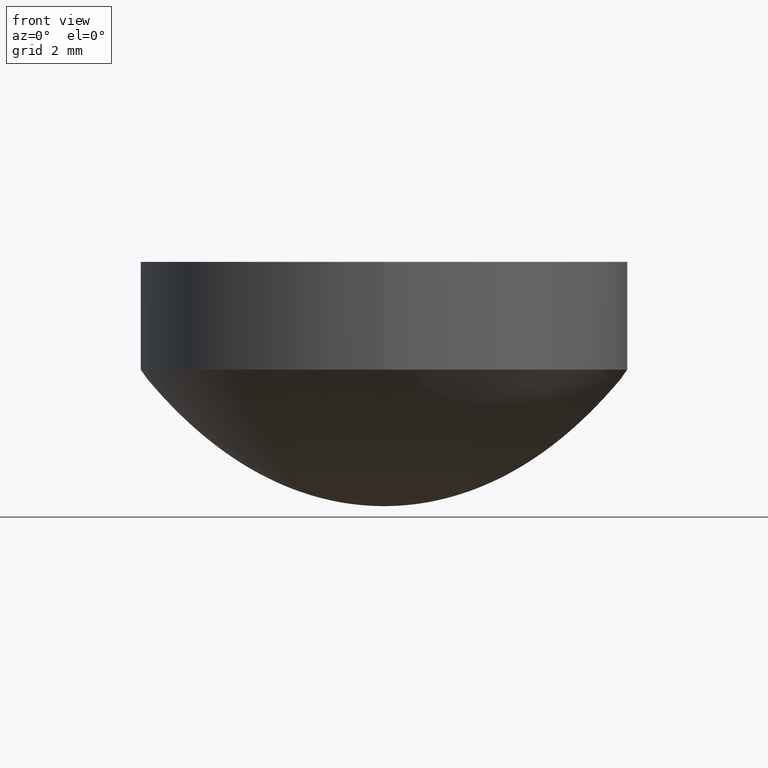
[diagram: clean part render]
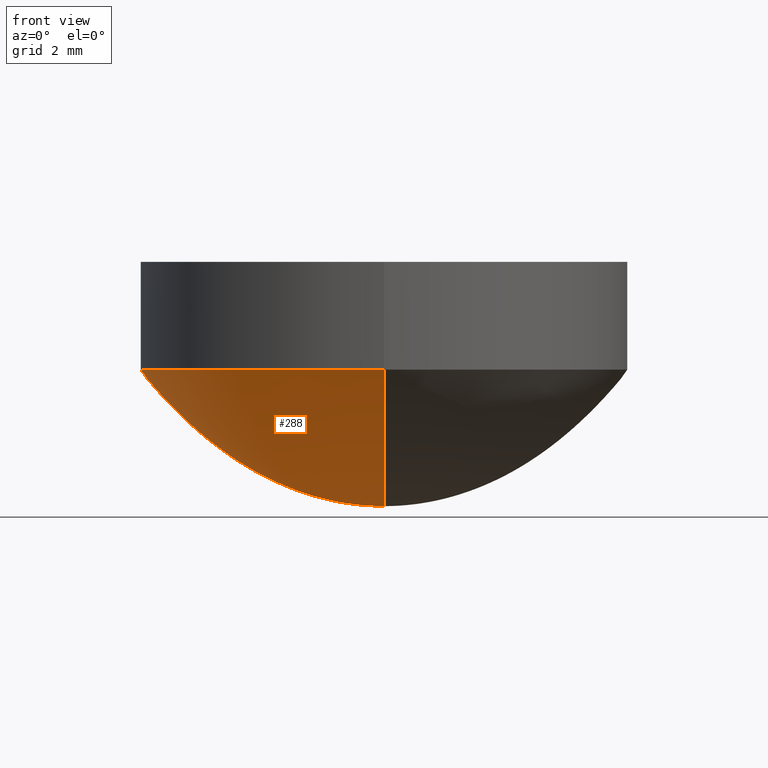
[diagram: same view with one face highlighted and labeled with its STEP entity id]
A machine part, front view. The second image highlights one B-rep face of the part: STEP entity #288.
In plain terms, the highlighted face is a freeform B-spline surface patch.
Its self-contained STEP definition (entity closure, byte-faithful):
#3 = CARTESIAN_POINT ( 'NONE',  ( -0.2083333333333338977, 0.1041666666666669905, 0.0008064525446619920856 ) ) ;
#4 = CARTESIAN_POINT ( 'NONE',  ( -8.020833333333337478, -4.010416666666668739, 1.720747009197980182 ) ) ;
#9 = CARTESIAN_POINT ( 'NONE',  ( 0.000000000000000000, 0.8854166666666670737, 0.07770321952578769509 ) ) ;
#10 = CARTESIAN_POINT ( 'NONE',  ( -3.890804934791066082E-16, -3.177083333333329929, 1.048866762044709855 ) ) ;
#13 = CARTESIAN_POINT ( 'NONE',  ( -6.378368745559127692E-18, -0.05208333333333330095, 0.000000000000000000 ) ) ;
#14 = CARTESIAN_POINT ( 'NONE',  ( 0.000000000000000000, 2.447916666666670071, 0.6104443979704369250 ) ) ;
#16 = CARTESIAN_POINT ( 'NONE',  ( 0.000000000000000000, 4.635416666666669627, 2.360148127938519913 ) ) ;
#19 = CARTESIAN_POINT ( 'NONE',  ( -1.211890061656234470E-16, -0.9895833333333330373, 0.09721789164745828216 ) ) ;
#20 = CARTESIAN_POINT ( 'NONE',  ( 0.000000000000000000, 2.552083333333330373, 0.6651740967401749138 ) ) ;
#26 = CARTESIAN_POINT ( 'NONE',  ( -2.806482248046021207E-16, -2.291666666666669627, 0.5330940863590959422 ) ) ;
#30 = CARTESIAN_POINT ( 'NONE',  ( -5.995666620825578906E-16, -4.895833333333330373, 2.664403828816089614 ) ) ;
#35 = CARTESIAN_POINT ( 'NONE',  ( -3.380535435146343200E-16, -2.760416666666669627, 0.7823694013034590000 ) ) ;
#36 = CARTESIAN_POINT ( 'NONE',  ( 0.000000000000000000, 4.947916666666669627, 2.728056462970759988 ) ) ;
#39 = CARTESIAN_POINT ( 'NONE',  ( -3.954588622246665194E-16, -3.229166666666669627, 1.085289345095020064 ) ) ;
#41 = CARTESIAN_POINT ( 'NONE',  ( -7.083333333333339255, -3.541666666666669183, 1.319014030935950155 ) ) ;
#42 = FACE_OUTER_BOUND ( 'NONE', #577, .T. ) ;
#44 = CARTESIAN_POINT ( 'NONE',  ( -4.464858121891388568E-16, -3.645833333333330373, 1.402859705147299962 ) ) ;
#45 = CARTESIAN_POINT ( 'NONE',  ( -3.316751747690744089E-16, -2.708333333333329929, 0.7520931647728069658 ) ) ;
#46 = CARTESIAN_POINT ( 'NONE',  ( 0.000000000000000000, 2.447916666666670071, 0.6104443979704369250 ) ) ;
#49 = CARTESIAN_POINT ( 'NONE',  ( -2.168645373490100596E-16, -1.770833333333329929, 0.3150526638210590091 ) ) ;
#50 = CARTESIAN_POINT ( 'NONE',  ( -9.895833333333339255, 4.947916666666669627, 2.728056462970759988 ) ) ;
#56 = CARTESIAN_POINT ( 'NONE',  ( -4.583333333333339255, 2.291666666666670071, 0.5330940863590960532 ) ) ;
#57 = CARTESIAN_POINT ( 'NONE',  ( 0.000000000000000000, 0.2604166666666670182, 0.006453795416485589957 ) ) ;
#60 = CARTESIAN_POINT ( 'NONE',  ( -3.854166666666659413, 1.927083333333329929, 0.3741652083103090276 ) ) ;
#62 = CARTESIAN_POINT ( 'NONE',  ( -5.294046058814083342E-16, -4.322916666666670515, 2.024935378494410187 ) ) ;
#67 = CARTESIAN_POINT ( 'NONE',  ( -2.232429060945700200E-16, -1.822916666666670071, 0.3341646850982459838 ) ) ;
#68 = CARTESIAN_POINT ( 'NONE',  ( -5.421613433725257899E-16, -4.427083333333329485, 2.133147733373760069 ) ) ;
#70 = CARTESIAN_POINT ( 'NONE',  ( -2.041077998578926038E-16, -1.666666666666670071, 0.2785780285211710283 ) ) ;
#72 = CARTESIAN_POINT ( 'NONE',  ( -4.464858121891388568E-16, -3.645833333333330373, 1.402859705147299962 ) ) ;
#76 = CARTESIAN_POINT ( 'NONE',  ( -1.666666666666665630, -0.8333333333333328152, 0.06877212295435830569 ) ) ;
#77 = CARTESIAN_POINT ( 'NONE',  ( 0.000000000000000000, 4.166666666666670515, 1.869068362535480032 ) ) ;
#81 = CARTESIAN_POINT ( 'NONE',  ( -1.275673749111830623E-16, -1.041666666666670071, 0.1078014655568300117 ) ) ;
#82 = CARTESIAN_POINT ( 'NONE',  ( 0.000000000000000000, 3.802083333333329929, 1.534370638992780034 ) ) ;
#86 = CARTESIAN_POINT ( 'NONE',  ( 0.000000000000000000, 0.4166666666666670182, 0.01694964846123230354 ) ) ;
#87 = CARTESIAN_POINT ( 'NONE',  ( 0.000000000000000000, 2.916666666666669627, 0.8771974430765130393 ) ) ;
#90 = CARTESIAN_POINT ( 'NONE',  ( -0.1041666666666665741, 0.05208333333333330095, 0.000000000000000000 ) ) ;
#91 = CARTESIAN_POINT ( 'NONE',  ( -6.145833333333338366, 3.072916666666670071, 0.9781205686555800582 ) ) ;
#95 = CARTESIAN_POINT ( 'NONE',  ( -0.8333333333333338144, -0.4166666666666669072, 0.01694964846123230354 ) ) ;
#96 = CARTESIAN_POINT ( 'NONE',  ( -5.208333333333339255, 2.604166666666670071, 0.6934955115667149617 ) ) ;
#101 = CARTESIAN_POINT ( 'NONE',  ( -3.508102810057518251E-16, -2.864583333333329929, 0.8449215409896569939 ) ) ;
#102 = CARTESIAN_POINT ( 'NONE',  ( -5.833333333333339255, -2.916666666666669183, 0.8771974430765129283 ) ) ;
#114 = CARTESIAN_POINT ( 'NONE',  ( 0.000000000000000000, 3.333333333333329929, 1.160287938878900027 ) ) ;
#117 = CARTESIAN_POINT ( 'NONE',  ( -1.211890061656234470E-16, -0.9895833333333330373, 0.09721789164745828216 ) ) ;
#121 = CARTESIAN_POINT ( 'NONE',  ( -1.785943248756552765E-16, -1.458333333333329929, 0.2125775925363989904 ) ) ;
#122 = CARTESIAN_POINT ( 'NONE',  ( -5.104166666666659857, -2.552083333333329929, 0.6651740967401749138 ) ) ;
#123 = EDGE_CURVE ( 'NONE', #237, #259, #645, .T. ) ;
#124 = CARTESIAN_POINT ( 'NONE',  ( 0.000000000000000000, 1.927083333333329929, 0.3741652083103090276 ) ) ;
#128 = CARTESIAN_POINT ( 'NONE',  ( -1.785943248756552765E-16, -1.458333333333329929, 0.2125775925363989904 ) ) ;
#129 = CARTESIAN_POINT ( 'NONE',  ( 0.000000000000000000, 0.05208333333333330095, 0.000000000000000000 ) ) ;
#132 = CARTESIAN_POINT ( 'NONE',  ( -3.229166666666658081, -1.614583333333329040, 0.2612154173146479241 ) ) ;
#133 = CARTESIAN_POINT ( 'NONE',  ( 0.000000000000000000, 0.7291666666666670737, 0.05255022102027309683 ) ) ;
#139 = CARTESIAN_POINT ( 'NONE',  ( 0.000000000000000000, 1.197916666666670071, 0.1428861566637960046 ) ) ;
#140 = CARTESIAN_POINT ( 'NONE',  ( -9.999999999999998224, 5.000000000000000000, 2.793147640223440753 ) ) ;
#143 = CARTESIAN_POINT ( 'NONE',  ( -3.020833333333339699, -1.510416666666669849, 0.2282151980032680050 ) ) ;
#144 = CARTESIAN_POINT ( 'NONE',  ( -8.229166666666658969, -4.114583333333329485, 1.818804946892209840 ) ) ;
#147 = CARTESIAN_POINT ( 'NONE',  ( -2.806482248046021207E-16, -2.291666666666669627, 0.5330940863590959422 ) ) ;
#148 = CARTESIAN_POINT ( 'NONE',  ( -7.604166666666659857, 3.802083333333329929, 1.534370638992780034 ) ) ;
#153 = CARTESIAN_POINT ( 'NONE',  ( -1.458333333333333925, -0.7291666666666667407, 0.05255022102027309683 ) ) ;
#156 = CARTESIAN_POINT ( 'NONE',  ( 0.000000000000000000, 4.010416666666669627, 1.720747009197980182 ) ) ;
#160 = CARTESIAN_POINT ( 'NONE',  ( 0.000000000000000000, 0.000000000000000000, 0.000000000000000000 ) ) ;
#162 = CARTESIAN_POINT ( 'NONE',  ( 0.000000000000000000, 4.322916666666670515, 2.024935378494410187 ) ) ;
#166 = CARTESIAN_POINT ( 'NONE',  ( -1.041666666666665853, 0.5208333333333330373, 0.02664777265347659588 ) ) ;
#167 = CARTESIAN_POINT ( 'NONE',  ( 0.000000000000000000, 3.645833333333330373, 1.402859705147299962 ) ) ;
#171 = CARTESIAN_POINT ( 'NONE',  ( 0.000000000000000000, 0.9895833333333330373, 0.09721789164745828216 ) ) ;
#172 = CARTESIAN_POINT ( 'NONE',  ( -6.458333333333337478, -3.229166666666668739, 1.085289345095020064 ) ) ;
#175 = CARTESIAN_POINT ( 'NONE',  ( -0.4166666666666659080, 0.2083333333333330373, 0.004033350387674640436 ) ) ;
#177 = CARTESIAN_POINT ( 'NONE',  ( -4.895833333333338366, -2.447916666666669183, 0.6104443979704369250 ) ) ;
#178 = CARTESIAN_POINT ( 'NONE',  ( 0.000000000000000000, 4.322916666666670515, 2.024935378494410187 ) ) ;
#181 = CARTESIAN_POINT ( 'NONE',  ( -4.273507059524613913E-16, -3.489583333333330373, 1.278226996112129976 ) ) ;
#182 = CARTESIAN_POINT ( 'NONE',  ( 0.000000000000000000, 3.385416666666669627, 1.198863952823499890 ) ) ;
#186 = CARTESIAN_POINT ( 'NONE',  ( -3.571886497513117363E-16, -2.916666666666669627, 0.8771974430765130393 ) ) ;
#189 = CARTESIAN_POINT ( 'NONE',  ( 0.000000000000000000, 3.020833333333330373, 0.9437969569100039813 ) ) ;
#194 = CARTESIAN_POINT ( 'NONE',  ( 0.000000000000000000, 3.645833333333330373, 1.402859705147299962 ) ) ;
#197 = CARTESIAN_POINT ( 'NONE',  ( -2.742698560590422096E-16, -2.239583333333329929, 0.5085603405870479099 ) ) ;
#202 = CARTESIAN_POINT ( 'NONE',  ( -5.868099245914404349E-16, -4.791666666666669627, 2.539913410714560005 ) ) ;
#204 = CARTESIAN_POINT ( 'NONE',  ( -5.520833333333339255, -2.760416666666668739, 0.7823694013034590000 ) ) ;
#206 = CARTESIAN_POINT ( 'NONE',  ( 0.000000000000000000, 1.458333333333329929, 0.2125775925363989904 ) ) ;
#210 = CARTESIAN_POINT ( 'NONE',  ( -1.275673749111830315E-17, -0.1041666666666670044, 0.0008064525446619920856 ) ) ;
#211 = CARTESIAN_POINT ( 'NONE',  ( -6.041666666666658081, 3.020833333333330373, 0.9437969569100038703 ) ) ;
#216 = CARTESIAN_POINT ( 'NONE',  ( -1.658375873845378207E-16, -1.354166666666670071, 0.1830055619264369937 ) ) ;
#217 = CARTESIAN_POINT ( 'NONE',  ( 0.000000000000000000, 1.666666666666670071, 0.2785780285211710283 ) ) ;
#221 = CARTESIAN_POINT ( 'NONE',  ( -6.378368745559127692E-18, -0.05208333333333330095, 0.000000000000000000 ) ) ;
#222 = CARTESIAN_POINT ( 'NONE',  ( 0.000000000000000000, 1.770833333333329929, 0.3150526638210590091 ) ) ;
#224 = CARTESIAN_POINT ( 'NONE',  ( -5.995666620825578906E-16, -4.895833333333330373, 2.664403828816089614 ) ) ;
#228 = CARTESIAN_POINT ( 'NONE',  ( -2.291666666666659413, -1.145833333333329707, 0.1306355990214130014 ) ) ;
#229 = CARTESIAN_POINT ( 'NONE',  ( 0.000000000000000000, 4.270833333333330373, 1.972133565051859883 ) ) ;
#233 = CARTESIAN_POINT ( 'NONE',  ( 0.000000000000000000, 2.083333333333330373, 0.4386370034883719793 ) ) ;
#234 = CARTESIAN_POINT ( 'NONE',  ( -9.583333333333337478, -4.791666666666668739, 2.539913410714560005 ) ) ;
#237 = VERTEX_POINT ( 'NONE', #381 ) ;
#238 = CARTESIAN_POINT ( 'NONE',  ( -1.041666666666665853, -0.5208333333333329263, 0.02664777265347659588 ) ) ;
#239 = CARTESIAN_POINT ( 'NONE',  ( 0.000000000000000000, 4.479166666666669627, 2.188558308208239822 ) ) ;
#243 = CARTESIAN_POINT ( 'NONE',  ( 0.000000000000000000, 0.1041666666666670044, 0.0008064525446619920856 ) ) ;
#245 = CARTESIAN_POINT ( 'NONE',  ( -9.270833333333337478, 4.635416666666669627, 2.360148127938519913 ) ) ;
#250 = CARTESIAN_POINT ( 'NONE',  ( -5.230262371358484230E-16, -4.270833333333330373, 1.972133565051859883 ) ) ;
#255 = CARTESIAN_POINT ( 'NONE',  ( -1.770833333333333925, 0.8854166666666670737, 0.07770321952578769509 ) ) ;
#256 = CARTESIAN_POINT ( 'NONE',  ( -6.666666666666658081, -3.333333333333329040, 1.160287938878900027 ) ) ;
#257 = CARTESIAN_POINT ( 'NONE',  ( 0.000000000000000000, 4.739583333333330373, 2.479075565606579712 ) ) ;
#259 = VERTEX_POINT ( 'NONE', #622 ) ;
#260 = CARTESIAN_POINT ( 'NONE',  ( -1.770833333333333925, -0.8854166666666669627, 0.07770321952578769509 ) ) ;
#262 = CARTESIAN_POINT ( 'NONE',  ( -3.380535435146343200E-16, -2.760416666666669627, 0.7823694013034590000 ) ) ;
#264 = CARTESIAN_POINT ( 'NONE',  ( 0.000000000000000000, 3.958333333333330373, 1.672952466389409976 ) ) ;
#267 = CARTESIAN_POINT ( 'NONE',  ( -3.699453872424291920E-16, -3.020833333333330373, 0.9437969569100039813 ) ) ;
#269 = CARTESIAN_POINT ( 'NONE',  ( -5.729166666666658969, 2.864583333333329929, 0.8449215409896571050 ) ) ;
#273 = CARTESIAN_POINT ( 'NONE',  ( -4.719992871713760363E-16, -3.854166666666669627, 1.579764289203899885 ) ) ;
#274 = CARTESIAN_POINT ( 'NONE',  ( 0.000000000000000000, 3.385416666666669627, 1.198863952823499890 ) ) ;
#285 = CARTESIAN_POINT ( 'NONE',  ( -1.467024811478604292E-16, -1.197916666666670071, 0.1428861566637960046 ) ) ;
#286 = CARTESIAN_POINT ( 'NONE',  ( 0.000000000000000000, 1.510416666666670071, 0.2282151980032680050 ) ) ;
#288 = ADVANCED_FACE ( 'NONE', ( #42 ), #1034, .T. ) ;
#290 = CARTESIAN_POINT ( 'NONE',  ( -2.934049622957196751E-16, -2.395833333333329929, 0.5840361164201749444 ) ) ;
#291 = CARTESIAN_POINT ( 'NONE',  ( -6.979166666666658969, 3.489583333333330373, 1.278226996112129976 ) ) ;
#296 = CARTESIAN_POINT ( 'NONE',  ( -4.273507059524613913E-16, -3.489583333333330373, 1.278226996112129976 ) ) ;
#297 = CARTESIAN_POINT ( 'NONE',  ( 0.000000000000000000, 1.302083333333329929, 0.1690711392038899974 ) ) ;
#301 = CARTESIAN_POINT ( 'NONE',  ( -6.378368745559127230E-17, -0.5208333333333330373, 0.02664777265347659588 ) ) ;
#303 = CARTESIAN_POINT ( 'NONE',  ( -2.708333333333339699, -1.354166666666669405, 0.1830055619264369937 ) ) ;
#305 = CARTESIAN_POINT ( 'NONE',  ( 0.000000000000000000, 0.1041666666666670044, 0.0008064525446619920856 ) ) ;
#309 = CARTESIAN_POINT ( 'NONE',  ( -2.359996435856874265E-16, -1.927083333333329929, 0.3741652083103090276 ) ) ;
#310 = CARTESIAN_POINT ( 'NONE',  ( 0.000000000000000000, 0.5208333333333330373, 0.02664777265347659588 ) ) ;
#313 = CARTESIAN_POINT ( 'NONE',  ( -8.291879369226865153E-17, -0.6770833333333329263, 0.04525941702231930236 ) ) ;
#314 = CARTESIAN_POINT ( 'NONE',  ( -3.541666666666659857, -1.770833333333329485, 0.3150526638210590091 ) ) ;
#316 = CARTESIAN_POINT ( 'NONE',  ( 0.000000000000000000, 4.739583333333330373, 2.479075565606579712 ) ) ;
#319 = CARTESIAN_POINT ( 'NONE',  ( 0.000000000000000000, 1.458333333333329929, 0.2125775925363989904 ) ) ;
#320 = CARTESIAN_POINT ( 'NONE',  ( -4.528641809346987680E-16, -3.697916666666669627, 1.445918352819189900 ) ) ;
#325 = CARTESIAN_POINT ( 'NONE',  ( -3.333333333333339255, -1.666666666666669627, 0.2785780285211710283 ) ) ;
#326 = CARTESIAN_POINT ( 'NONE',  ( -7.395833333333337478, 3.697916666666670071, 1.445918352819189900 ) ) ;
#329 = ORIENTED_EDGE ( 'NONE', *, *, #1031, .F. ) ;
#330 = CARTESIAN_POINT ( 'NONE',  ( 0.000000000000000000, 0.2604166666666670182, 0.006453795416485589957 ) ) ;
#331 = CARTESIAN_POINT ( 'NONE',  ( 0.000000000000000000, 4.583333333333329485, 2.302058484811909889 ) ) ;
#335 = CARTESIAN_POINT ( 'NONE',  ( -1.084322686745052763E-16, -0.8854166666666670737, 0.07770321952578769509 ) ) ;
#337 = CARTESIAN_POINT ( 'NONE',  ( -4.656209184258161251E-16, -3.802083333333329929, 1.534370638992780034 ) ) ;
#342 = CARTESIAN_POINT ( 'NONE',  ( -1.145833333333333703, -0.5729166666666668517, 0.03230819229490249772 ) ) ;
#343 = CARTESIAN_POINT ( 'NONE',  ( -3.763237559879891525E-16, -3.072916666666670071, 0.9781205686555799472 ) ) ;
#347 = CARTESIAN_POINT ( 'NONE',  ( -0.5208333333333339255, -0.2604166666666669627, 0.006453795416485589957 ) ) ;
#348 = CARTESIAN_POINT ( 'NONE',  ( -6.354166666666658081, 3.177083333333330373, 1.048866762044710077 ) ) ;
#349 = CARTESIAN_POINT ( 'NONE',  ( 0.000000000000000000, 4.583333333333329485, 2.302058484811909889 ) ) ;
#353 = CARTESIAN_POINT ( 'NONE',  ( -1.979166666666665408, -0.9895833333333327042, 0.09721789164745829603 ) ) ;
#357 = CARTESIAN_POINT ( 'NONE',  ( 0.000000000000000000, 2.395833333333329929, 0.5840361164201749444 ) ) ;
#360 = CARTESIAN_POINT ( 'NONE',  ( -4.082155997157840244E-16, -3.333333333333329929, 1.160287938878900027 ) ) ;
#362 = CARTESIAN_POINT ( 'NONE',  ( 0.000000000000000000, 4.270833333333330373, 1.972133565051859883 ) ) ;
#365 = CARTESIAN_POINT ( 'NONE',  ( -2.997833310412795863E-16, -2.447916666666670071, 0.6104443979704369250 ) ) ;
#369 = CARTESIAN_POINT ( 'NONE',  ( -4.528641809346987680E-16, -3.697916666666669627, 1.445918352819189900 ) ) ;
#371 = CARTESIAN_POINT ( 'NONE',  ( 0.000000000000000000, 2.083333333333330373, 0.4386370034883719793 ) ) ;
#374 = CARTESIAN_POINT ( 'NONE',  ( -2.359996435856874265E-16, -1.927083333333329929, 0.3741652083103090276 ) ) ;
#375 = CARTESIAN_POINT ( 'NONE',  ( 0.000000000000000000, 2.760416666666669627, 0.7823694013034590000 ) ) ;
#376 = CARTESIAN_POINT ( 'NONE',  ( 0.000000000000000000, 1.770833333333329929, 0.3150526638210590091 ) ) ;
#379 = CARTESIAN_POINT ( 'NONE',  ( -5.038911308991709575E-16, -4.114583333333330373, 1.818804946892209840 ) ) ;
#380 = CARTESIAN_POINT ( 'NONE',  ( -4.791666666666658969, -2.395833333333329485, 0.5840361164201749444 ) ) ;
#381 = CARTESIAN_POINT ( 'NONE',  ( 0.000000000000000000, 5.000000000000000000, 2.793147640223440309 ) ) ;
#385 = CARTESIAN_POINT ( 'NONE',  ( 0.000000000000000000, 1.666666666666670071, 0.2785780285211710283 ) ) ;
#386 = CARTESIAN_POINT ( 'NONE',  ( 0.000000000000000000, 2.239583333333329929, 0.5085603405870479099 ) ) ;
#390 = CARTESIAN_POINT ( 'NONE',  ( -2.423780123312473869E-16, -1.979166666666669849, 0.3950537073087639905 ) ) ;
#391 = CARTESIAN_POINT ( 'NONE',  ( -9.895833333333339255, -4.947916666666669627, 2.728056462970759988 ) ) ;
#394 = CARTESIAN_POINT ( 'NONE',  ( -4.166666666666659857, -2.083333333333329929, 0.4386370034883719793 ) ) ;
#395 = CARTESIAN_POINT ( 'NONE',  ( -5.804315558458805237E-16, -4.739583333333330373, 2.479075565606579712 ) ) ;
#400 = CARTESIAN_POINT ( 'NONE',  ( 0.000000000000000000, 1.041666666666670071, 0.1078014655568300117 ) ) ;
#401 = CARTESIAN_POINT ( 'NONE',  ( -7.916666666666658081, 3.958333333333330373, 1.672952466389410198 ) ) ;
#405 = CARTESIAN_POINT ( 'NONE',  ( 0.000000000000000000, 1.510416666666670071, 0.2282151980032680050 ) ) ;
#407 = CARTESIAN_POINT ( 'NONE',  ( -8.645833333333337478, -4.322916666666668739, 2.024935378494410187 ) ) ;
#411 = CARTESIAN_POINT ( 'NONE',  ( 0.000000000000000000, 0.6770833333333329263, 0.04525941702231930236 ) ) ;
#412 = CARTESIAN_POINT ( 'NONE',  ( 0.000000000000000000, 3.958333333333330373, 1.672952466389409976 ) ) ;
#416 = CARTESIAN_POINT ( 'NONE',  ( -1.666666666666665630, 0.8333333333333329263, 0.06877212295435830569 ) ) ;
#418 = CARTESIAN_POINT ( 'NONE',  ( 0.000000000000000000, 4.635416666666669627, 2.360148127938519913 ) ) ;
#423 = CARTESIAN_POINT ( 'NONE',  ( 0.000000000000000000, 0.8333333333333329263, 0.06877212295435830569 ) ) ;
#424 = CARTESIAN_POINT ( 'NONE',  ( -6.458333333333337478, 3.229166666666669627, 1.085289345095020064 ) ) ;
#427 = ORIENTED_EDGE ( 'NONE', *, *, #809, .F. ) ;
#428 = CARTESIAN_POINT ( 'NONE',  ( -0.1041666666666665741, -0.05208333333333328707, 0.000000000000000000 ) ) ;
#429 = CARTESIAN_POINT ( 'NONE',  ( -3.699453872424291920E-16, -3.020833333333330373, 0.9437969569100039813 ) ) ;
#430 = CARTESIAN_POINT ( 'NONE',  ( 0.000000000000000000, 5.000000000000000000, 2.793147640223440309 ) ) ;
#434 = CARTESIAN_POINT ( 'NONE',  ( -6.145833333333338366, -3.072916666666669183, 0.9781205686555800582 ) ) ;
#442 = CARTESIAN_POINT ( 'NONE',  ( -5.520833333333339255, 2.760416666666669627, 0.7823694013034590000 ) ) ;
#451 = CARTESIAN_POINT ( 'NONE',  ( -5.804315558458805237E-16, -4.739583333333330373, 2.479075565606579712 ) ) ;
#457 = CARTESIAN_POINT ( 'NONE',  ( -6.123233995736766282E-16, -5.000000000000000000, 2.793147640223440309 ) ) ;
#461 = CARTESIAN_POINT ( 'NONE',  ( -5.485397121180857011E-16, -4.479166666666669627, 2.188558308208239822 ) ) ;
#462 = CARTESIAN_POINT ( 'NONE',  ( -3.125400685323970420E-16, -2.552083333333330373, 0.6651740967401749138 ) ) ;
#463 = CARTESIAN_POINT ( 'NONE',  ( 0.000000000000000000, 0.4166666666666670182, 0.01694964846123230354 ) ) ;
#467 = CARTESIAN_POINT ( 'NONE',  ( -2.708333333333339699, 1.354166666666670071, 0.1830055619264369937 ) ) ;
#468 = CARTESIAN_POINT ( 'NONE',  ( -9.999999999999998224, -4.999999999999999112, 2.793147640223440753 ) ) ;
#471 = CARTESIAN_POINT ( 'NONE',  ( -2.551347498223648612E-17, -0.2083333333333330095, 0.004033350387674640436 ) ) ;
#472 = CARTESIAN_POINT ( 'NONE',  ( -1.594592186389778603E-16, -1.302083333333329929, 0.1690711392038899974 ) ) ;
#477 = CARTESIAN_POINT ( 'NONE',  ( 0.000000000000000000, 1.145833333333329929, 0.1306355990214130014 ) ) ;
#478 = CARTESIAN_POINT ( 'NONE',  ( 0.000000000000000000, 0.2083333333333330095, 0.004033350387674640436 ) ) ;
#481 = CARTESIAN_POINT ( 'NONE',  ( -1.467024811478604292E-16, -1.197916666666670071, 0.1428861566637960046 ) ) ;
#483 = CARTESIAN_POINT ( 'NONE',  ( -8.020833333333337478, 4.010416666666669627, 1.720747009197980182 ) ) ;
#485 = CARTESIAN_POINT ( 'NONE',  ( -4.166666666666659857, 2.083333333333330373, 0.4386370034883719793 ) ) ;
#486 = CARTESIAN_POINT ( 'NONE',  ( 0.000000000000000000, 3.697916666666669627, 1.445918352819189900 ) ) ;
#490 = CARTESIAN_POINT ( 'NONE',  ( -1.145833333333333703, 0.5729166666666670737, 0.03230819229490249772 ) ) ;
#491 = CARTESIAN_POINT ( 'NONE',  ( -9.583333333333337478, 4.791666666666669627, 2.539913410714560005 ) ) ;
#496 = CARTESIAN_POINT ( 'NONE',  ( -6.378368745559127230E-17, -0.5208333333333330373, 0.02664777265347659588 ) ) ;
#497 = CARTESIAN_POINT ( 'NONE',  ( -5.038911308991709575E-16, -4.114583333333330373, 1.818804946892209840 ) ) ;
#502 = CARTESIAN_POINT ( 'NONE',  ( -7.291666666666659857, -3.645833333333329929, 1.402859705147299962 ) ) ;
#506 = CARTESIAN_POINT ( 'NONE',  ( -0.7291666666666659635, -0.3645833333333328707, 0.01291194472337759899 ) ) ;
#509 = CARTESIAN_POINT ( 'NONE',  ( 0.000000000000000000, 3.489583333333330373, 1.278226996112129976 ) ) ;
#512 = CARTESIAN_POINT ( 'NONE',  ( -2.083333333333339699, -1.041666666666669849, 0.1078014655568299979 ) ) ;
#514 = CARTESIAN_POINT ( 'NONE',  ( 0.000000000000000000, 3.072916666666670071, 0.9781205686555799472 ) ) ;
#518 = CARTESIAN_POINT ( 'NONE',  ( -5.612964496092031568E-16, -4.583333333333329485, 2.302058484811909889 ) ) ;
#519 = CARTESIAN_POINT ( 'NONE',  ( -6.354166666666658081, -3.177083333333329040, 1.048866762044710077 ) ) ;
#524 = CARTESIAN_POINT ( 'NONE',  ( -1.849726936212152369E-16, -1.510416666666670071, 0.2282151980032680050 ) ) ;
#530 = CARTESIAN_POINT ( 'NONE',  ( -3.763237559879891525E-16, -3.072916666666670071, 0.9781205686555799472 ) ) ;
#531 = CARTESIAN_POINT ( 'NONE',  ( 0.000000000000000000, 3.072916666666670071, 0.9781205686555799472 ) ) ;
#534 = CARTESIAN_POINT ( 'NONE',  ( -5.421613433725257899E-16, -4.427083333333329485, 2.133147733373760069 ) ) ;
#538 = CARTESIAN_POINT ( 'NONE',  ( -2.168645373490100596E-16, -1.770833333333329929, 0.3150526638210590091 ) ) ;
#539 = CARTESIAN_POINT ( 'NONE',  ( -5.833333333333339255, 2.916666666666669627, 0.8771974430765129283 ) ) ;
#541 = CARTESIAN_POINT ( 'NONE',  ( 0.000000000000000000, 4.947916666666669627, 2.728056462970759988 ) ) ;
#545 = CARTESIAN_POINT ( 'NONE',  ( -2.916666666666658969, -1.458333333333329485, 0.2125775925363989904 ) ) ;
#546 = CARTESIAN_POINT ( 'NONE',  ( 0.000000000000000000, 2.395833333333329929, 0.5840361164201749444 ) ) ;
#549 = CARTESIAN_POINT ( 'NONE',  ( -3.189184372779570394E-17, -0.2604166666666670182, 0.006453795416485589957 ) ) ;
#551 = CARTESIAN_POINT ( 'NONE',  ( -2.916666666666658969, 1.458333333333329929, 0.2125775925363989904 ) ) ;
#552 = CARTESIAN_POINT ( 'NONE',  ( 0.000000000000000000, 1.145833333333329929, 0.1306355990214130014 ) ) ;
#554 = CARTESIAN_POINT ( 'NONE',  ( 0.000000000000000000, 1.302083333333329929, 0.1690711392038899974 ) ) ;
#555 = CARTESIAN_POINT ( 'NONE',  ( 0.000000000000000000, 0.000000000000000000, 0.000000000000000000 ) ) ;
#561 = CARTESIAN_POINT ( 'NONE',  ( -2.395833333333339699, 1.197916666666669849, 0.1428861566637960323 ) ) ;
#562 = CARTESIAN_POINT ( 'NONE',  ( -9.479166666666658969, 4.739583333333330373, 2.479075565606579268 ) ) ;
#565 = CARTESIAN_POINT ( 'NONE',  ( 0.000000000000000000, 1.927083333333329929, 0.3741652083103090276 ) ) ;
#566 = CARTESIAN_POINT ( 'NONE',  ( -7.916666666666658081, -3.958333333333329040, 1.672952466389410198 ) ) ;
#570 = CARTESIAN_POINT ( 'NONE',  ( -3.189184372779570394E-17, -0.2604166666666670182, 0.006453795416485589957 ) ) ;
#571 = CARTESIAN_POINT ( 'NONE',  ( -8.645833333333337478, 4.322916666666670515, 2.024935378494410187 ) ) ;
#577 = EDGE_LOOP ( 'NONE', ( #427, #329, #673 ) ) ;
#578 = CARTESIAN_POINT ( 'NONE',  ( -1.354166666666665630, 0.6770833333333330373, 0.04525941702231930236 ) ) ;
#579 = CARTESIAN_POINT ( 'NONE',  ( -9.166666666666658969, 4.583333333333329485, 2.302058484811909889 ) ) ;
#583 = CARTESIAN_POINT ( 'NONE',  ( 0.000000000000000000, 0.7291666666666670737, 0.05255022102027309683 ) ) ;
#586 = CARTESIAN_POINT ( 'NONE',  ( -8.958333333333337478, 4.479166666666669627, 2.188558308208239822 ) ) ;
#590 = CARTESIAN_POINT ( 'NONE',  ( -0.2083333333333338977, -0.1041666666666669488, 0.0008064525446619920856 ) ) ;
#591 = CARTESIAN_POINT ( 'NONE',  ( 0.000000000000000000, 3.229166666666669627, 1.085289345095020064 ) ) ;
#594 = CARTESIAN_POINT ( 'NONE',  ( 0.000000000000000000, 0.3645833333333330373, 0.01291194472337760073 ) ) ;
#596 = CARTESIAN_POINT ( 'NONE',  ( -5.729166666666658969, -2.864583333333329485, 0.8449215409896571050 ) ) ;
#600 = CARTESIAN_POINT ( 'NONE',  ( -2.232429060945700200E-16, -1.822916666666670071, 0.3341646850982459838 ) ) ;
#601 = CARTESIAN_POINT ( 'NONE',  ( -3.508102810057518251E-16, -2.864583333333329929, 0.8449215409896569939 ) ) ;
#602 = CARTESIAN_POINT ( 'NONE',  ( 0.000000000000000000, 4.010416666666669627, 1.720747009197980182 ) ) ;
#605 = CARTESIAN_POINT ( 'NONE',  ( -3.316751747690744089E-16, -2.708333333333329929, 0.7520931647728069658 ) ) ;
#607 = CARTESIAN_POINT ( 'NONE',  ( 0.000000000000000000, 3.229166666666669627, 1.085289345095020064 ) ) ;
#610 = CARTESIAN_POINT ( 'NONE',  ( -5.294046058814083342E-16, -4.322916666666670515, 2.024935378494410187 ) ) ;
#613 = CARTESIAN_POINT ( 'NONE',  ( 0.000000000000000000, 4.479166666666669627, 2.188558308208239822 ) ) ;
#616 = CARTESIAN_POINT ( 'NONE',  ( -4.656209184258161251E-16, -3.802083333333329929, 1.534370638992780034 ) ) ;
#617 = CARTESIAN_POINT ( 'NONE',  ( 0.000000000000000000, 0.8854166666666670737, 0.07770321952578769509 ) ) ;
#620 = CARTESIAN_POINT ( 'NONE',  ( -2.615131185679248031E-16, -2.135416666666670071, 0.4613317976900179751 ) ) ;
#621 = CARTESIAN_POINT ( 'NONE',  ( -6.770833333333337478, -3.385416666666668739, 1.198863952823499890 ) ) ;
#622 = CARTESIAN_POINT ( 'NONE',  ( 0.000000000000000000, 0.000000000000000000, 0.000000000000000000 ) ) ;
#628 = CARTESIAN_POINT ( 'NONE',  ( -4.082155997157840244E-16, -3.333333333333329929, 1.160287938878900027 ) ) ;
#630 = CARTESIAN_POINT ( 'NONE',  ( 0.000000000000000000, 2.708333333333329929, 0.7520931647728069658 ) ) ;
#633 = CARTESIAN_POINT ( 'NONE',  ( -2.615131185679248031E-16, -2.135416666666670071, 0.4613317976900179751 ) ) ;
#634 = CARTESIAN_POINT ( 'NONE',  ( -6.059450308281178018E-16, -4.947916666666669627, 2.728056462970759988 ) ) ;
#638 = CARTESIAN_POINT ( 'NONE',  ( 0.000000000000000000, 1.979166666666669849, 0.3950537073087639905 ) ) ;
#639 = CARTESIAN_POINT ( 'NONE',  ( -9.791666666666658969, 4.895833333333330373, 2.664403828816089614 ) ) ;
#643 = DIRECTION ( 'NONE',  ( 0.000000000000000000, 0.000000000000000000, 1.000000000000000000 ) ) ;
#644 = CARTESIAN_POINT ( 'NONE',  ( -1.849726936212152369E-16, -1.510416666666670071, 0.2282151980032680050 ) ) ;
#645 = B_SPLINE_CURVE_WITH_KNOTS ( 'NONE', 3,
 ( #430, #36, #782, #766, #257, #16, #349, #613, #683, #178, #362, #932, #690, #602, #264, #695, #852, #938, #194, #1011, #1027, #274, #114, #607, #948, #531, #189, #871, #714, #805, #630, #884, #876, #46, #546, #964, #386, #1038, #371, #975, #124, #704, #376, #217, #1049, #286, #206, #1064, #297, #709, #552, #812, #719, #617, #1058, #133, #1043, #970, #310, #463, #799, #57, #478, #305, #129, #555 ),
 .UNSPECIFIED., .F., .F.,
 ( 4, 2, 2, 2, 2, 2, 2, 2, 2, 2, 2, 2, 2, 2, 2, 2, 2, 2, 2, 2, 2, 2, 2, 2, 2, 2, 2, 2, 2, 2, 2, 2, 4 ),
 ( -1.000000000000000000, -0.9687500000000000000, -0.9375000000000000000, -0.9062500000000000000, -0.8750000000000000000, -0.8437500000000000000, -0.8125000000000000000, -0.7812500000000000000, -0.7500000000000000000, -0.7187500000000000000, -0.6875000000000000000, -0.6562500000000000000, -0.6250000000000000000, -0.5937500000000000000, -0.5625000000000000000, -0.5312500000000000000, -0.5000000000000000000, -0.4687500000000000000, -0.4375000000000000000, -0.4062500000000000000, -0.3750000000000000000, -0.3437500000000000000, -0.3125000000000000000, -0.2812500000000000000, -0.2500000000000000000, -0.2187500000000000000, -0.1875000000000000000, -0.1562500000000000000, -0.1250000000000000000, -0.09375000000000000000, -0.06250000000000000000, -0.03125000000000000000, 0.000000000000000000 ),
 .UNSPECIFIED. ) ;
#646 = CARTESIAN_POINT ( 'NONE',  ( -9.479166666666658969, -4.739583333333329485, 2.479075565606579268 ) ) ;
#651 = CARTESIAN_POINT ( 'NONE',  ( 0.000000000000000000, 2.239583333333329929, 0.5085603405870479099 ) ) ;
#652 = CARTESIAN_POINT ( 'NONE',  ( -5.485397121180857011E-16, -4.479166666666669627, 2.188558308208239822 ) ) ;
#656 = CARTESIAN_POINT ( 'NONE',  ( -3.229166666666658081, 1.614583333333329707, 0.2612154173146479241 ) ) ;
#657 = CARTESIAN_POINT ( 'NONE',  ( -7.291666666666659857, 3.645833333333330817, 1.402859705147299962 ) ) ;
#660 = CARTESIAN_POINT ( 'NONE',  ( -0.5208333333333339255, 0.2604166666666670182, 0.006453795416485589957 ) ) ;
#661 = CARTESIAN_POINT ( 'NONE',  ( -8.854166666666657193, -4.427083333333328596, 2.133147733373759625 ) ) ;
#668 = CARTESIAN_POINT ( 'NONE',  ( 0.000000000000000000, 0.000000000000000000, 0.000000000000000000 ) ) ;
#669 = CARTESIAN_POINT ( 'NONE',  ( -7.395833333333339255, -3.697916666666668739, 1.445918352819189900 ) ) ;
#673 = ORIENTED_EDGE ( 'NONE', *, *, #123, .T. ) ;
#674 = CARTESIAN_POINT ( 'NONE',  ( -8.291879369226865153E-17, -0.6770833333333329263, 0.04525941702231930236 ) ) ;
#676 = CARTESIAN_POINT ( 'NONE',  ( -3.571886497513117363E-16, -2.916666666666669627, 0.8771974430765130393 ) ) ;
#681 = CARTESIAN_POINT ( 'NONE',  ( 0.000000000000000000, 0.000000000000000000, 0.000000000000000000 ) ) ;
#682 = CARTESIAN_POINT ( 'NONE',  ( -3.189184372779570025E-16, -2.604166666666670071, 0.6934955115667149617 ) ) ;
#683 = CARTESIAN_POINT ( 'NONE',  ( 0.000000000000000000, 4.427083333333329485, 2.133147733373760069 ) ) ;
#687 = CARTESIAN_POINT ( 'NONE',  ( -8.929716243782788476E-17, -0.7291666666666670737, 0.05255022102027309683 ) ) ;
#689 = CARTESIAN_POINT ( 'NONE',  ( -6.666666666666658081, 3.333333333333329929, 1.160287938878900027 ) ) ;
#690 = CARTESIAN_POINT ( 'NONE',  ( 0.000000000000000000, 4.114583333333330373, 1.818804946892209840 ) ) ;
#694 = CARTESIAN_POINT ( 'NONE',  ( -2.041077998578926038E-16, -1.666666666666670071, 0.2785780285211710283 ) ) ;
#695 = CARTESIAN_POINT ( 'NONE',  ( 0.000000000000000000, 3.854166666666669627, 1.579764289203899885 ) ) ;
#698 = CARTESIAN_POINT ( 'NONE',  ( 6.123233995736766282E-16, -5.000000000000000000, 2.793147640223440309 ) ) ;
#702 = CARTESIAN_POINT ( 'NONE',  ( -2.423780123312473869E-16, -1.979166666666669849, 0.3950537073087639905 ) ) ;
#703 = CIRCLE ( 'NONE', #736, 5.000000000000000000 ) ;
#704 = CARTESIAN_POINT ( 'NONE',  ( 0.000000000000000000, 1.822916666666670071, 0.3341646850982459838 ) ) ;
#707 = CARTESIAN_POINT ( 'NONE',  ( -1.084322686745052763E-16, -0.8854166666666670737, 0.07770321952578769509 ) ) ;
#708 = CARTESIAN_POINT ( 'NONE',  ( -5.416666666666658969, -2.708333333333329485, 0.7520931647728069658 ) ) ;
#709 = CARTESIAN_POINT ( 'NONE',  ( 0.000000000000000000, 1.197916666666670071, 0.1428861566637960046 ) ) ;
#713 = CARTESIAN_POINT ( 'NONE',  ( -2.934049622957196751E-16, -2.395833333333329929, 0.5840361164201749444 ) ) ;
#714 = CARTESIAN_POINT ( 'NONE',  ( 0.000000000000000000, 2.864583333333329929, 0.8449215409896569939 ) ) ;
#717 = CARTESIAN_POINT ( 'NONE',  ( 0.000000000000000000, 1.614583333333329929, 0.2612154173146479796 ) ) ;
#719 = CARTESIAN_POINT ( 'NONE',  ( 0.000000000000000000, 0.9895833333333330373, 0.09721789164745828216 ) ) ;
#722 = CARTESIAN_POINT ( 'NONE',  ( -4.464858121891388075E-17, -0.3645833333333330373, 0.01291194472337760073 ) ) ;
#723 = CARTESIAN_POINT ( 'NONE',  ( -3.854166666666659413, -1.927083333333329707, 0.3741652083103090276 ) ) ;
#725 = CARTESIAN_POINT ( 'NONE',  ( 0.000000000000000000, 4.895833333333330373, 2.664403828816089614 ) ) ;
#728 = CARTESIAN_POINT ( 'NONE',  ( -1.020538999289460554E-16, -0.8333333333333329263, 0.06877212295435830569 ) ) ;
#729 = CARTESIAN_POINT ( 'NONE',  ( -2.742698560590422096E-16, -2.239583333333329929, 0.5085603405870479099 ) ) ;
#730 = CARTESIAN_POINT ( 'NONE',  ( -4.911343934080535018E-16, -4.010416666666669627, 1.720747009197980182 ) ) ;
#735 = CARTESIAN_POINT ( 'NONE',  ( 0.000000000000000000, 1.822916666666670071, 0.3341646850982459838 ) ) ;
#736 = AXIS2_PLACEMENT_3D ( 'NONE', #1046, #643, #803 ) ;
#738 = CARTESIAN_POINT ( 'NONE',  ( -8.541666666666658969, -4.270833333333329485, 1.972133565051860105 ) ) ;
#742 = CARTESIAN_POINT ( 'NONE',  ( -3.645833333333339255, 1.822916666666670071, 0.3341646850982459838 ) ) ;
#743 = CARTESIAN_POINT ( 'NONE',  ( 0.000000000000000000, 4.114583333333330373, 1.818804946892209840 ) ) ;
#747 = CARTESIAN_POINT ( 'NONE',  ( -0.7291666666666659635, 0.3645833333333330373, 0.01291194472337759899 ) ) ;
#748 = CARTESIAN_POINT ( 'NONE',  ( -4.847560246624935906E-16, -3.958333333333330373, 1.672952466389409976 ) ) ;
#752 = CARTESIAN_POINT ( 'NONE',  ( -7.016205620115048088E-17, -0.5729166666666669627, 0.03230819229490249772 ) ) ;
#753 = CARTESIAN_POINT ( 'NONE',  ( -9.166666666666658969, -4.583333333333329485, 2.302058484811909889 ) ) ;
#757 = CARTESIAN_POINT ( 'NONE',  ( 0.000000000000000000, 0.5208333333333330373, 0.02664777265347659588 ) ) ;
#759 = CARTESIAN_POINT ( 'NONE',  ( -4.145939684613439356E-16, -3.385416666666669627, 1.198863952823499890 ) ) ;
#763 = VERTEX_POINT ( 'NONE', #698 ) ;
#764 = CARTESIAN_POINT ( 'NONE',  ( 0.000000000000000000, 0.5729166666666669627, 0.03230819229490249772 ) ) ;
#765 = CARTESIAN_POINT ( 'NONE',  ( -5.104166666666659857, 2.552083333333330373, 0.6651740967401749138 ) ) ;
#766 = CARTESIAN_POINT ( 'NONE',  ( 0.000000000000000000, 4.791666666666669627, 2.539913410714560005 ) ) ;
#769 = CARTESIAN_POINT ( 'NONE',  ( -1.020538999289460554E-16, -0.8333333333333329263, 0.06877212295435830569 ) ) ;
#770 = CARTESIAN_POINT ( 'NONE',  ( -7.083333333333338366, 3.541666666666670515, 1.319014030935950155 ) ) ;
#776 = CARTESIAN_POINT ( 'NONE',  ( -3.125400685323970420E-16, -2.552083333333330373, 0.6651740967401749138 ) ) ;
#781 = CARTESIAN_POINT ( 'NONE',  ( -5.676748183547630680E-16, -4.635416666666669627, 2.360148127938519913 ) ) ;
#782 = CARTESIAN_POINT ( 'NONE',  ( 0.000000000000000000, 4.895833333333330373, 2.664403828816089614 ) ) ;
#785 = CARTESIAN_POINT ( 'NONE',  ( -3.890804934791066082E-16, -3.177083333333329929, 1.048866762044709855 ) ) ;
#789 = CARTESIAN_POINT ( 'NONE',  ( -4.337290746980213025E-16, -3.541666666666670071, 1.319014030935950155 ) ) ;
#791 = CARTESIAN_POINT ( 'NONE',  ( 0.000000000000000000, 2.708333333333329929, 0.7520931647728069658 ) ) ;
#792 = CARTESIAN_POINT ( 'NONE',  ( -5.102694996447308933E-17, -0.4166666666666670182, 0.01694964846123230354 ) ) ;
#797 = CARTESIAN_POINT ( 'NONE',  ( -1.977294311123326434E-16, -1.614583333333329929, 0.2612154173146479796 ) ) ;
#798 = CARTESIAN_POINT ( 'NONE',  ( -4.895833333333338366, 2.447916666666669627, 0.6104443979704369250 ) ) ;
#799 = CARTESIAN_POINT ( 'NONE',  ( 0.000000000000000000, 0.3645833333333330373, 0.01291194472337760073 ) ) ;
#803 = DIRECTION ( 'NONE',  ( 0.000000000000000000, 1.000000000000000000, 0.000000000000000000 ) ) ;
#804 = CARTESIAN_POINT ( 'NONE',  ( -3.958333333333338810, 1.979166666666669849, 0.3950537073087639905 ) ) ;
#805 = CARTESIAN_POINT ( 'NONE',  ( 0.000000000000000000, 2.760416666666669627, 0.7823694013034590000 ) ) ;
#808 = CARTESIAN_POINT ( 'NONE',  ( -5.102694996447308933E-17, -0.4166666666666670182, 0.01694964846123230354 ) ) ;
#809 = EDGE_CURVE ( 'NONE', #763, #259, #823, .T. ) ;
#810 = CARTESIAN_POINT ( 'NONE',  ( -4.270833333333339255, 2.135416666666670071, 0.4613317976900179751 ) ) ;
#812 = CARTESIAN_POINT ( 'NONE',  ( 0.000000000000000000, 1.041666666666670071, 0.1078014655568300117 ) ) ;
#815 = CARTESIAN_POINT ( 'NONE',  ( -7.016205620115048088E-17, -0.5729166666666669627, 0.03230819229490249772 ) ) ;
#816 = CARTESIAN_POINT ( 'NONE',  ( -2.551347498223648427E-16, -2.083333333333330373, 0.4386370034883719793 ) ) ;
#822 = CARTESIAN_POINT ( 'NONE',  ( -1.403241124023004687E-16, -1.145833333333329929, 0.1306355990214130014 ) ) ;
#823 = B_SPLINE_CURVE_WITH_KNOTS ( 'NONE', 3,
 ( #1037, #1041, #30, #202, #451, #781, #518, #461, #534, #610, #952, #941, #379, #946, #860, #273, #616, #369, #44, #789, #181, #1026, #360, #39, #785, #530, #267, #186, #101, #35, #605, #879, #776, #365, #290, #26, #197, #620, #962, #702, #374, #600, #538, #694, #797, #524, #121, #1030, #866, #285, #958, #874, #117, #707, #728, #1067, #313, #815, #301, #808, #722, #549, #471, #210, #221, #987 ),
 .UNSPECIFIED., .F., .F.,
 ( 4, 2, 2, 2, 2, 2, 2, 2, 2, 2, 2, 2, 2, 2, 2, 2, 2, 2, 2, 2, 2, 2, 2, 2, 2, 2, 2, 2, 2, 2, 2, 2, 4 ),
 ( -1.000000000000000000, -0.9687500000000000000, -0.9375000000000000000, -0.9062500000000000000, -0.8750000000000000000, -0.8437500000000000000, -0.8125000000000000000, -0.7812500000000000000, -0.7500000000000000000, -0.7187500000000000000, -0.6875000000000000000, -0.6562500000000000000, -0.6250000000000000000, -0.5937500000000000000, -0.5625000000000000000, -0.5312500000000000000, -0.5000000000000000000, -0.4687500000000000000, -0.4375000000000000000, -0.4062500000000000000, -0.3750000000000000000, -0.3437500000000000000, -0.3125000000000000000, -0.2812500000000000000, -0.2500000000000000000, -0.2187500000000000000, -0.1875000000000000000, -0.1562500000000000000, -0.1250000000000000000, -0.09375000000000000000, -0.06250000000000000000, -0.03125000000000000000, 0.000000000000000000 ),
 .UNSPECIFIED. ) ;
#824 = CARTESIAN_POINT ( 'NONE',  ( -5.612964496092031568E-16, -4.583333333333329485, 2.302058484811909889 ) ) ;
#827 = CARTESIAN_POINT ( 'NONE',  ( -3.958333333333338810, -1.979166666666669405, 0.3950537073087639905 ) ) ;
#829 = CARTESIAN_POINT ( 'NONE',  ( -5.102694996447308687E-16, -4.166666666666670515, 1.869068362535480032 ) ) ;
#833 = CARTESIAN_POINT ( 'NONE',  ( -1.979166666666665408, 0.9895833333333329263, 0.09721789164745829603 ) ) ;
#834 = CARTESIAN_POINT ( 'NONE',  ( -8.958333333333337478, -4.479166666666668739, 2.188558308208239822 ) ) ;
#838 = CARTESIAN_POINT ( 'NONE',  ( -4.719992871713760363E-16, -3.854166666666669627, 1.579764289203899885 ) ) ;
#842 = CARTESIAN_POINT ( 'NONE',  ( -2.083333333333339699, 1.041666666666670071, 0.1078014655568299979 ) ) ;
#844 = CARTESIAN_POINT ( 'NONE',  ( -2.997833310412795863E-16, -2.447916666666670071, 0.6104443979704369250 ) ) ;
#850 = CARTESIAN_POINT ( 'NONE',  ( 0.000000000000000000, 0.05208333333333330095, 0.000000000000000000 ) ) ;
#851 = CARTESIAN_POINT ( 'NONE',  ( -3.954588622246665194E-16, -3.229166666666669627, 1.085289345095020064 ) ) ;
#852 = CARTESIAN_POINT ( 'NONE',  ( 0.000000000000000000, 3.802083333333329929, 1.534370638992780034 ) ) ;
#856 = CARTESIAN_POINT ( 'NONE',  ( -4.791666666666658969, 2.395833333333330373, 0.5840361164201749444 ) ) ;
#860 = CARTESIAN_POINT ( 'NONE',  ( -4.847560246624935906E-16, -3.958333333333330373, 1.672952466389409976 ) ) ;
#861 = CARTESIAN_POINT ( 'NONE',  ( 0.000000000000000000, 2.864583333333329929, 0.8449215409896569939 ) ) ;
#866 = CARTESIAN_POINT ( 'NONE',  ( -1.594592186389778603E-16, -1.302083333333329929, 0.1690711392038899974 ) ) ;
#871 = CARTESIAN_POINT ( 'NONE',  ( 0.000000000000000000, 2.916666666666669627, 0.8771974430765130393 ) ) ;
#874 = CARTESIAN_POINT ( 'NONE',  ( -1.275673749111830623E-16, -1.041666666666670071, 0.1078014655568300117 ) ) ;
#876 = CARTESIAN_POINT ( 'NONE',  ( 0.000000000000000000, 2.552083333333330373, 0.6651740967401749138 ) ) ;
#879 = CARTESIAN_POINT ( 'NONE',  ( -3.189184372779570025E-16, -2.604166666666670071, 0.6934955115667149617 ) ) ;
#881 = CARTESIAN_POINT ( 'NONE',  ( 0.000000000000000000, 2.604166666666670071, 0.6934955115667149617 ) ) ;
#884 = CARTESIAN_POINT ( 'NONE',  ( 0.000000000000000000, 2.604166666666670071, 0.6934955115667149617 ) ) ;
#887 = CARTESIAN_POINT ( 'NONE',  ( -3.333333333333339255, 1.666666666666669849, 0.2785780285211710283 ) ) ;
#888 = CARTESIAN_POINT ( 'NONE',  ( 0.000000000000000000, 5.000000000000000000, 2.793147640223440309 ) ) ;
#892 = CARTESIAN_POINT ( 'NONE',  ( -2.604166666666659857, -1.302083333333329929, 0.1690711392038899974 ) ) ;
#897 = CARTESIAN_POINT ( 'NONE',  ( -2.604166666666659857, 1.302083333333329929, 0.1690711392038899974 ) ) ;
#900 = CARTESIAN_POINT ( 'NONE',  ( 0.000000000000000000, 4.791666666666669627, 2.539913410714560005 ) ) ;
#903 = CARTESIAN_POINT ( 'NONE',  ( -2.395833333333339699, -1.197916666666669849, 0.1428861566637960323 ) ) ;
#904 = CARTESIAN_POINT ( 'NONE',  ( -8.333333333333337478, 4.166666666666669627, 1.869068362535480254 ) ) ;
#906 = CARTESIAN_POINT ( 'NONE',  ( -4.583333333333339255, -2.291666666666669627, 0.5330940863590960532 ) ) ;
#908 = CARTESIAN_POINT ( 'NONE',  ( 0.000000000000000000, 3.854166666666669627, 1.579764289203899885 ) ) ;
#912 = CARTESIAN_POINT ( 'NONE',  ( -0.4166666666666659080, -0.2083333333333329540, 0.004033350387674640436 ) ) ;
#915 = CARTESIAN_POINT ( 'NONE',  ( -8.541666666666658969, 4.270833333333330373, 1.972133565051860105 ) ) ;
#919 = CARTESIAN_POINT ( 'NONE',  ( -0.8333333333333338144, 0.4166666666666670737, 0.01694964846123230354 ) ) ;
#920 = CARTESIAN_POINT ( 'NONE',  ( 0.000000000000000000, 4.427083333333329485, 2.133147733373760069 ) ) ;
#925 = CARTESIAN_POINT ( 'NONE',  ( -1.458333333333333925, 0.7291666666666670737, 0.05255022102027309683 ) ) ;
#926 = CARTESIAN_POINT ( 'NONE',  ( -7.604166666666659857, -3.802083333333329929, 1.534370638992780034 ) ) ;
#930 = CARTESIAN_POINT ( 'NONE',  ( -1.354166666666665630, -0.6770833333333327042, 0.04525941702231930236 ) ) ;
#931 = CARTESIAN_POINT ( 'NONE',  ( 0.000000000000000000, 3.177083333333329929, 1.048866762044709855 ) ) ;
#932 = CARTESIAN_POINT ( 'NONE',  ( 0.000000000000000000, 4.166666666666670515, 1.869068362535480032 ) ) ;
#936 = CARTESIAN_POINT ( 'NONE',  ( -4.464858121891388075E-17, -0.3645833333333330373, 0.01291194472337760073 ) ) ;
#937 = CARTESIAN_POINT ( 'NONE',  ( -5.416666666666658969, 2.708333333333329929, 0.7520931647728069658 ) ) ;
#938 = CARTESIAN_POINT ( 'NONE',  ( 0.000000000000000000, 3.697916666666669627, 1.445918352819189900 ) ) ;
#941 = CARTESIAN_POINT ( 'NONE',  ( -5.102694996447308687E-16, -4.166666666666670515, 1.869068362535480032 ) ) ;
#942 = CARTESIAN_POINT ( 'NONE',  ( -6.041666666666658081, -3.020833333333329040, 0.9437969569100038703 ) ) ;
#946 = CARTESIAN_POINT ( 'NONE',  ( -4.911343934080535018E-16, -4.010416666666669627, 1.720747009197980182 ) ) ;
#948 = CARTESIAN_POINT ( 'NONE',  ( 0.000000000000000000, 3.177083333333329929, 1.048866762044709855 ) ) ;
#952 = CARTESIAN_POINT ( 'NONE',  ( -5.230262371358484230E-16, -4.270833333333330373, 1.972133565051859883 ) ) ;
#958 = CARTESIAN_POINT ( 'NONE',  ( -1.403241124023004687E-16, -1.145833333333329929, 0.1306355990214130014 ) ) ;
#962 = CARTESIAN_POINT ( 'NONE',  ( -2.551347498223648427E-16, -2.083333333333330373, 0.4386370034883719793 ) ) ;
#963 = CARTESIAN_POINT ( 'NONE',  ( 0.000000000000000000, 3.020833333333330373, 0.9437969569100039813 ) ) ;
#964 = CARTESIAN_POINT ( 'NONE',  ( 0.000000000000000000, 2.291666666666669627, 0.5330940863590959422 ) ) ;
#969 = CARTESIAN_POINT ( 'NONE',  ( -6.770833333333337478, 3.385416666666670071, 1.198863952823499890 ) ) ;
#970 = CARTESIAN_POINT ( 'NONE',  ( 0.000000000000000000, 0.5729166666666669627, 0.03230819229490249772 ) ) ;
#974 = CARTESIAN_POINT ( 'NONE',  ( 0.000000000000000000, 1.354166666666670071, 0.1830055619264369937 ) ) ;
#975 = CARTESIAN_POINT ( 'NONE',  ( 0.000000000000000000, 1.979166666666669849, 0.3950537073087639905 ) ) ;
#978 = CARTESIAN_POINT ( 'NONE',  ( -3.645833333333340143, -1.822916666666669627, 0.3341646850982459838 ) ) ;
#979 = CARTESIAN_POINT ( 'NONE',  ( -9.791666666666658969, -4.895833333333329485, 2.664403828816089614 ) ) ;
#982 = CARTESIAN_POINT ( 'NONE',  ( -2.291666666666659413, 1.145833333333329707, 0.1306355990214130014 ) ) ;
#984 = CARTESIAN_POINT ( 'NONE',  ( -9.270833333333337478, -4.635416666666668739, 2.360148127938519913 ) ) ;
#987 = CARTESIAN_POINT ( 'NONE',  ( 0.000000000000000000, 0.000000000000000000, 0.000000000000000000 ) ) ;
#990 = CARTESIAN_POINT ( 'NONE',  ( -4.479166666666658969, 2.239583333333329929, 0.5085603405870479099 ) ) ;
#991 = CARTESIAN_POINT ( 'NONE',  ( -8.333333333333337478, -4.166666666666668739, 1.869068362535480254 ) ) ;
#995 = CARTESIAN_POINT ( 'NONE',  ( -3.020833333333339699, 1.510416666666670293, 0.2282151980032680050 ) ) ;
#996 = CARTESIAN_POINT ( 'NONE',  ( -5.868099245914404349E-16, -4.791666666666669627, 2.539913410714560005 ) ) ;
#1000 = CARTESIAN_POINT ( 'NONE',  ( 0.000000000000000000, 0.2083333333333330095, 0.004033350387674640436 ) ) ;
#1001 = CARTESIAN_POINT ( 'NONE',  ( -7.708333333333340143, -3.854166666666669183, 1.579764289203900329 ) ) ;
#1004 = CARTESIAN_POINT ( 'NONE',  ( 0.000000000000000000, 0.000000000000000000, 0.000000000000000000 ) ) ;
#1005 = CARTESIAN_POINT ( 'NONE',  ( -8.854166666666657193, 4.427083333333330373, 2.133147733373759625 ) ) ;
#1009 = CARTESIAN_POINT ( 'NONE',  ( -1.275673749111830315E-17, -0.1041666666666670044, 0.0008064525446619920856 ) ) ;
#1010 = CARTESIAN_POINT ( 'NONE',  ( -5.208333333333339255, -2.604166666666669627, 0.6934955115667149617 ) ) ;
#1011 = CARTESIAN_POINT ( 'NONE',  ( 0.000000000000000000, 3.541666666666670071, 1.319014030935950155 ) ) ;
#1014 = CARTESIAN_POINT ( 'NONE',  ( -2.551347498223648612E-17, -0.2083333333333330095, 0.004033350387674640436 ) ) ;
#1015 = CARTESIAN_POINT ( 'NONE',  ( 0.000000000000000000, 3.333333333333329929, 1.160287938878900027 ) ) ;
#1022 = CARTESIAN_POINT ( 'NONE',  ( -6.979166666666658969, -3.489583333333329485, 1.278226996112129976 ) ) ;
#1026 = CARTESIAN_POINT ( 'NONE',  ( -4.145939684613439356E-16, -3.385416666666669627, 1.198863952823499890 ) ) ;
#1027 = CARTESIAN_POINT ( 'NONE',  ( 0.000000000000000000, 3.489583333333330373, 1.278226996112129976 ) ) ;
#1030 = CARTESIAN_POINT ( 'NONE',  ( -1.658375873845378207E-16, -1.354166666666670071, 0.1830055619264369937 ) ) ;
#1031 = EDGE_CURVE ( 'NONE', #237, #763, #703, .T. ) ;
#1034 =( BOUNDED_SURFACE ( )  B_SPLINE_SURFACE ( 3, 3, ( 
 ( #888, #140, #468, #457 ),
 ( #541, #50, #391, #634 ),
 ( #725, #639, #979, #224 ),
 ( #900, #491, #234, #996 ),
 ( #316, #562, #646, #395 ),
 ( #418, #245, #984, #1077 ),
 ( #331, #579, #753, #824 ),
 ( #239, #586, #834, #652 ),
 ( #920, #1005, #661, #68 ),
 ( #162, #571, #407, #62 ),
 ( #229, #915, #738, #250 ),
 ( #77, #904, #991, #829 ),
 ( #743, #1069, #144, #497 ),
 ( #156, #483, #4, #730 ),
 ( #412, #401, #566, #748 ),
 ( #908, #1085, #1001, #838 ),
 ( #82, #148, #926, #337 ),
 ( #486, #326, #669, #320 ),
 ( #167, #657, #502, #72 ),
 ( #1082, #770, #41, #1042 ),
 ( #509, #291, #1022, #296 ),
 ( #182, #969, #621, #759 ),
 ( #1015, #689, #256, #628 ),
 ( #591, #424, #172, #851 ),
 ( #931, #348, #519, #10 ),
 ( #514, #91, #434, #343 ),
 ( #963, #211, #942, #429 ),
 ( #87, #539, #102, #676 ),
 ( #861, #269, #596, #601 ),
 ( #375, #442, #204, #262 ),
 ( #791, #937, #708, #45 ),
 ( #881, #96, #1010, #682 ),
 ( #20, #765, #122, #462 ),
 ( #14, #798, #177, #844 ),
 ( #357, #856, #380, #713 ),
 ( #1048, #56, #906, #147 ),
 ( #651, #990, #1055, #729 ),
 ( #1063, #810, #1081, #633 ),
 ( #233, #485, #394, #816 ),
 ( #638, #804, #827, #390 ),
 ( #565, #60, #723, #309 ),
 ( #735, #742, #978, #67 ),
 ( #222, #1068, #314, #49 ),
 ( #385, #887, #325, #70 ),
 ( #717, #656, #132, #1075 ),
 ( #405, #995, #143, #644 ),
 ( #319, #551, #545, #128 ),
 ( #974, #467, #303, #216 ),
 ( #554, #897, #892, #472 ),
 ( #139, #561, #903, #481 ),
 ( #477, #982, #228, #822 ),
 ( #400, #842, #512, #81 ),
 ( #171, #833, #353, #19 ),
 ( #9, #255, #260, #335 ),
 ( #423, #416, #76, #769 ),
 ( #583, #925, #153, #687 ),
 ( #411, #578, #930, #674 ),
 ( #764, #490, #342, #752 ),
 ( #757, #166, #238, #496 ),
 ( #86, #919, #95, #792 ),
 ( #594, #747, #506, #936 ),
 ( #330, #660, #347, #570 ),
 ( #1000, #175, #912, #1014 ),
 ( #243, #3, #590, #1009 ),
 ( #850, #90, #428, #13 ),
 ( #668, #160, #681, #1004 ) ),
 .UNSPECIFIED., .F., .F., .T. ) 
 B_SPLINE_SURFACE_WITH_KNOTS ( ( 4, 2, 2, 2, 2, 2, 2, 2, 2, 2, 2, 2, 2, 2, 2, 2, 2, 2, 2, 2, 2, 2, 2, 2, 2, 2, 2, 2, 2, 2, 2, 2, 4 ),
 ( 4, 4 ),
 ( -1.000000000000000000, -0.9687500000000000000, -0.9375000000000000000, -0.9062500000000000000, -0.8750000000000000000, -0.8437500000000000000, -0.8125000000000000000, -0.7812500000000000000, -0.7500000000000000000, -0.7187500000000000000, -0.6875000000000000000, -0.6562500000000000000, -0.6250000000000000000, -0.5937500000000000000, -0.5625000000000000000, -0.5312500000000000000, -0.5000000000000000000, -0.4687500000000000000, -0.4375000000000000000, -0.4062500000000000000, -0.3750000000000000000, -0.3437500000000000000, -0.3125000000000000000, -0.2812500000000000000, -0.2500000000000000000, -0.2187500000000000000, -0.1875000000000000000, -0.1562500000000000000, -0.1250000000000000000, -0.09375000000000000000, -0.06250000000000000000, -0.03125000000000000000, 0.000000000000000000 ),
 ( 0.000000000000000000, 1.000000000000000000 ),
 .UNSPECIFIED. ) 
 GEOMETRIC_REPRESENTATION_ITEM ( )  RATIONAL_B_SPLINE_SURFACE ( (
 ( 1.000000000000000000, 0.3333333333333334259, 0.3333333333333334259, 1.000000000000000000),
 ( 1.000000000000000000, 0.3333333333333334259, 0.3333333333333334259, 1.000000000000000000),
 ( 1.000000000000000000, 0.3333333333333334259, 0.3333333333333334259, 1.000000000000000000),
 ( 1.000000000000000000, 0.3333333333333334259, 0.3333333333333334259, 1.000000000000000000),
 ( 1.000000000000000000, 0.3333333333333334259, 0.3333333333333334259, 1.000000000000000000),
 ( 1.000000000000000000, 0.3333333333333334259, 0.3333333333333334259, 1.000000000000000000),
 ( 1.000000000000000000, 0.3333333333333334259, 0.3333333333333334259, 1.000000000000000000),
 ( 1.000000000000000000, 0.3333333333333334259, 0.3333333333333334259, 1.000000000000000000),
 ( 1.000000000000000000, 0.3333333333333334259, 0.3333333333333334259, 1.000000000000000000),
 ( 1.000000000000000000, 0.3333333333333334259, 0.3333333333333334259, 1.000000000000000000),
 ( 1.000000000000000000, 0.3333333333333334259, 0.3333333333333334259, 1.000000000000000000),
 ( 1.000000000000000000, 0.3333333333333334259, 0.3333333333333334259, 1.000000000000000000),
 ( 1.000000000000000000, 0.3333333333333334259, 0.3333333333333334259, 1.000000000000000000),
 ( 1.000000000000000000, 0.3333333333333334259, 0.3333333333333334259, 1.000000000000000000),
 ( 1.000000000000000000, 0.3333333333333334259, 0.3333333333333334259, 1.000000000000000000),
 ( 1.000000000000000000, 0.3333333333333334259, 0.3333333333333334259, 1.000000000000000000),
 ( 1.000000000000000000, 0.3333333333333334259, 0.3333333333333334259, 1.000000000000000000),
 ( 1.000000000000000000, 0.3333333333333334259, 0.3333333333333334259, 1.000000000000000000),
 ( 1.000000000000000000, 0.3333333333333334259, 0.3333333333333334259, 1.000000000000000000),
 ( 1.000000000000000000, 0.3333333333333334259, 0.3333333333333334259, 1.000000000000000000),
 ( 1.000000000000000000, 0.3333333333333334259, 0.3333333333333334259, 1.000000000000000000),
 ( 1.000000000000000000, 0.3333333333333334259, 0.3333333333333334259, 1.000000000000000000),
 ( 1.000000000000000000, 0.3333333333333334259, 0.3333333333333334259, 1.000000000000000000),
 ( 1.000000000000000000, 0.3333333333333334259, 0.3333333333333334259, 1.000000000000000000),
 ( 1.000000000000000000, 0.3333333333333334259, 0.3333333333333334259, 1.000000000000000000),
 ( 1.000000000000000000, 0.3333333333333334259, 0.3333333333333334259, 1.000000000000000000),
 ( 1.000000000000000000, 0.3333333333333334259, 0.3333333333333334259, 1.000000000000000000),
 ( 1.000000000000000000, 0.3333333333333334259, 0.3333333333333334259, 1.000000000000000000),
 ( 1.000000000000000000, 0.3333333333333334259, 0.3333333333333334259, 1.000000000000000000),
 ( 1.000000000000000000, 0.3333333333333334259, 0.3333333333333334259, 1.000000000000000000),
 ( 1.000000000000000000, 0.3333333333333334259, 0.3333333333333334259, 1.000000000000000000),
 ( 1.000000000000000000, 0.3333333333333334259, 0.3333333333333334259, 1.000000000000000000),
 ( 1.000000000000000000, 0.3333333333333334259, 0.3333333333333334259, 1.000000000000000000),
 ( 1.000000000000000000, 0.3333333333333334259, 0.3333333333333334259, 1.000000000000000000),
 ( 1.000000000000000000, 0.3333333333333334259, 0.3333333333333334259, 1.000000000000000000),
 ( 1.000000000000000000, 0.3333333333333334259, 0.3333333333333334259, 1.000000000000000000),
 ( 1.000000000000000000, 0.3333333333333334259, 0.3333333333333334259, 1.000000000000000000),
 ( 1.000000000000000000, 0.3333333333333334259, 0.3333333333333334259, 1.000000000000000000),
 ( 1.000000000000000000, 0.3333333333333334259, 0.3333333333333334259, 1.000000000000000000),
 ( 1.000000000000000000, 0.3333333333333334259, 0.3333333333333334259, 1.000000000000000000),
 ( 1.000000000000000000, 0.3333333333333334259, 0.3333333333333334259, 1.000000000000000000),
 ( 1.000000000000000000, 0.3333333333333334259, 0.3333333333333334259, 1.000000000000000000),
 ( 1.000000000000000000, 0.3333333333333334259, 0.3333333333333334259, 1.000000000000000000),
 ( 1.000000000000000000, 0.3333333333333334259, 0.3333333333333334259, 1.000000000000000000),
 ( 1.000000000000000000, 0.3333333333333334259, 0.3333333333333334259, 1.000000000000000000),
 ( 1.000000000000000000, 0.3333333333333334259, 0.3333333333333334259, 1.000000000000000000),
 ( 1.000000000000000000, 0.3333333333333334259, 0.3333333333333334259, 1.000000000000000000),
 ( 1.000000000000000000, 0.3333333333333334259, 0.3333333333333334259, 1.000000000000000000),
 ( 1.000000000000000000, 0.3333333333333334259, 0.3333333333333334259, 1.000000000000000000),
 ( 1.000000000000000000, 0.3333333333333334259, 0.3333333333333334259, 1.000000000000000000),
 ( 1.000000000000000000, 0.3333333333333334259, 0.3333333333333334259, 1.000000000000000000),
 ( 1.000000000000000000, 0.3333333333333334259, 0.3333333333333334259, 1.000000000000000000),
 ( 1.000000000000000000, 0.3333333333333334259, 0.3333333333333334259, 1.000000000000000000),
 ( 1.000000000000000000, 0.3333333333333334259, 0.3333333333333334259, 1.000000000000000000),
 ( 1.000000000000000000, 0.3333333333333334259, 0.3333333333333334259, 1.000000000000000000),
 ( 1.000000000000000000, 0.3333333333333334259, 0.3333333333333334259, 1.000000000000000000),
 ( 1.000000000000000000, 0.3333333333333334259, 0.3333333333333334259, 1.000000000000000000),
 ( 1.000000000000000000, 0.3333333333333334259, 0.3333333333333334259, 1.000000000000000000),
 ( 1.000000000000000000, 0.3333333333333334259, 0.3333333333333334259, 1.000000000000000000),
 ( 1.000000000000000000, 0.3333333333333334259, 0.3333333333333334259, 1.000000000000000000),
 ( 1.000000000000000000, 0.3333333333333334259, 0.3333333333333334259, 1.000000000000000000),
 ( 1.000000000000000000, 0.3333333333333334259, 0.3333333333333334259, 1.000000000000000000),
 ( 1.000000000000000000, 0.3333333333333334259, 0.3333333333333334259, 1.000000000000000000),
 ( 1.000000000000000000, 0.3333333333333334259, 0.3333333333333334259, 1.000000000000000000),
 ( 1.000000000000000000, 0.3333333333333334259, 0.3333333333333334259, 1.000000000000000000),
 ( 1.000000000000000000, 0.3333333333333334259, 0.3333333333333334259, 1.000000000000000000) ) ) 
 REPRESENTATION_ITEM ( '' )  SURFACE ( )  );
#1037 = CARTESIAN_POINT ( 'NONE',  ( 6.123233995736766282E-16, -5.000000000000000000, 2.793147640223440309 ) ) ;
#1038 = CARTESIAN_POINT ( 'NONE',  ( 0.000000000000000000, 2.135416666666670071, 0.4613317976900179751 ) ) ;
#1041 = CARTESIAN_POINT ( 'NONE',  ( -6.059450308281178018E-16, -4.947916666666669627, 2.728056462970759988 ) ) ;
#1042 = CARTESIAN_POINT ( 'NONE',  ( -4.337290746980213025E-16, -3.541666666666670071, 1.319014030935950155 ) ) ;
#1043 = CARTESIAN_POINT ( 'NONE',  ( 0.000000000000000000, 0.6770833333333329263, 0.04525941702231930236 ) ) ;
#1046 = CARTESIAN_POINT ( 'NONE',  ( 0.000000000000000000, 0.000000000000000000, 2.793147640223440309 ) ) ;
#1048 = CARTESIAN_POINT ( 'NONE',  ( 0.000000000000000000, 2.291666666666669627, 0.5330940863590959422 ) ) ;
#1049 = CARTESIAN_POINT ( 'NONE',  ( 0.000000000000000000, 1.614583333333329929, 0.2612154173146479796 ) ) ;
#1055 = CARTESIAN_POINT ( 'NONE',  ( -4.479166666666658969, -2.239583333333329485, 0.5085603405870479099 ) ) ;
#1058 = CARTESIAN_POINT ( 'NONE',  ( 0.000000000000000000, 0.8333333333333329263, 0.06877212295435830569 ) ) ;
#1063 = CARTESIAN_POINT ( 'NONE',  ( 0.000000000000000000, 2.135416666666670071, 0.4613317976900179751 ) ) ;
#1064 = CARTESIAN_POINT ( 'NONE',  ( 0.000000000000000000, 1.354166666666670071, 0.1830055619264369937 ) ) ;
#1067 = CARTESIAN_POINT ( 'NONE',  ( -8.929716243782788476E-17, -0.7291666666666670737, 0.05255022102027309683 ) ) ;
#1068 = CARTESIAN_POINT ( 'NONE',  ( -3.541666666666658969, 1.770833333333329929, 0.3150526638210590091 ) ) ;
#1069 = CARTESIAN_POINT ( 'NONE',  ( -8.229166666666658969, 4.114583333333329485, 1.818804946892209840 ) ) ;
#1075 = CARTESIAN_POINT ( 'NONE',  ( -1.977294311123326434E-16, -1.614583333333329929, 0.2612154173146479796 ) ) ;
#1077 = CARTESIAN_POINT ( 'NONE',  ( -5.676748183547630680E-16, -4.635416666666669627, 2.360148127938519913 ) ) ;
#1081 = CARTESIAN_POINT ( 'NONE',  ( -4.270833333333339255, -2.135416666666669627, 0.4613317976900179751 ) ) ;
#1082 = CARTESIAN_POINT ( 'NONE',  ( 0.000000000000000000, 3.541666666666670071, 1.319014030935950155 ) ) ;
#1085 = CARTESIAN_POINT ( 'NONE',  ( -7.708333333333338366, 3.854166666666670071, 1.579764289203900329 ) ) ;